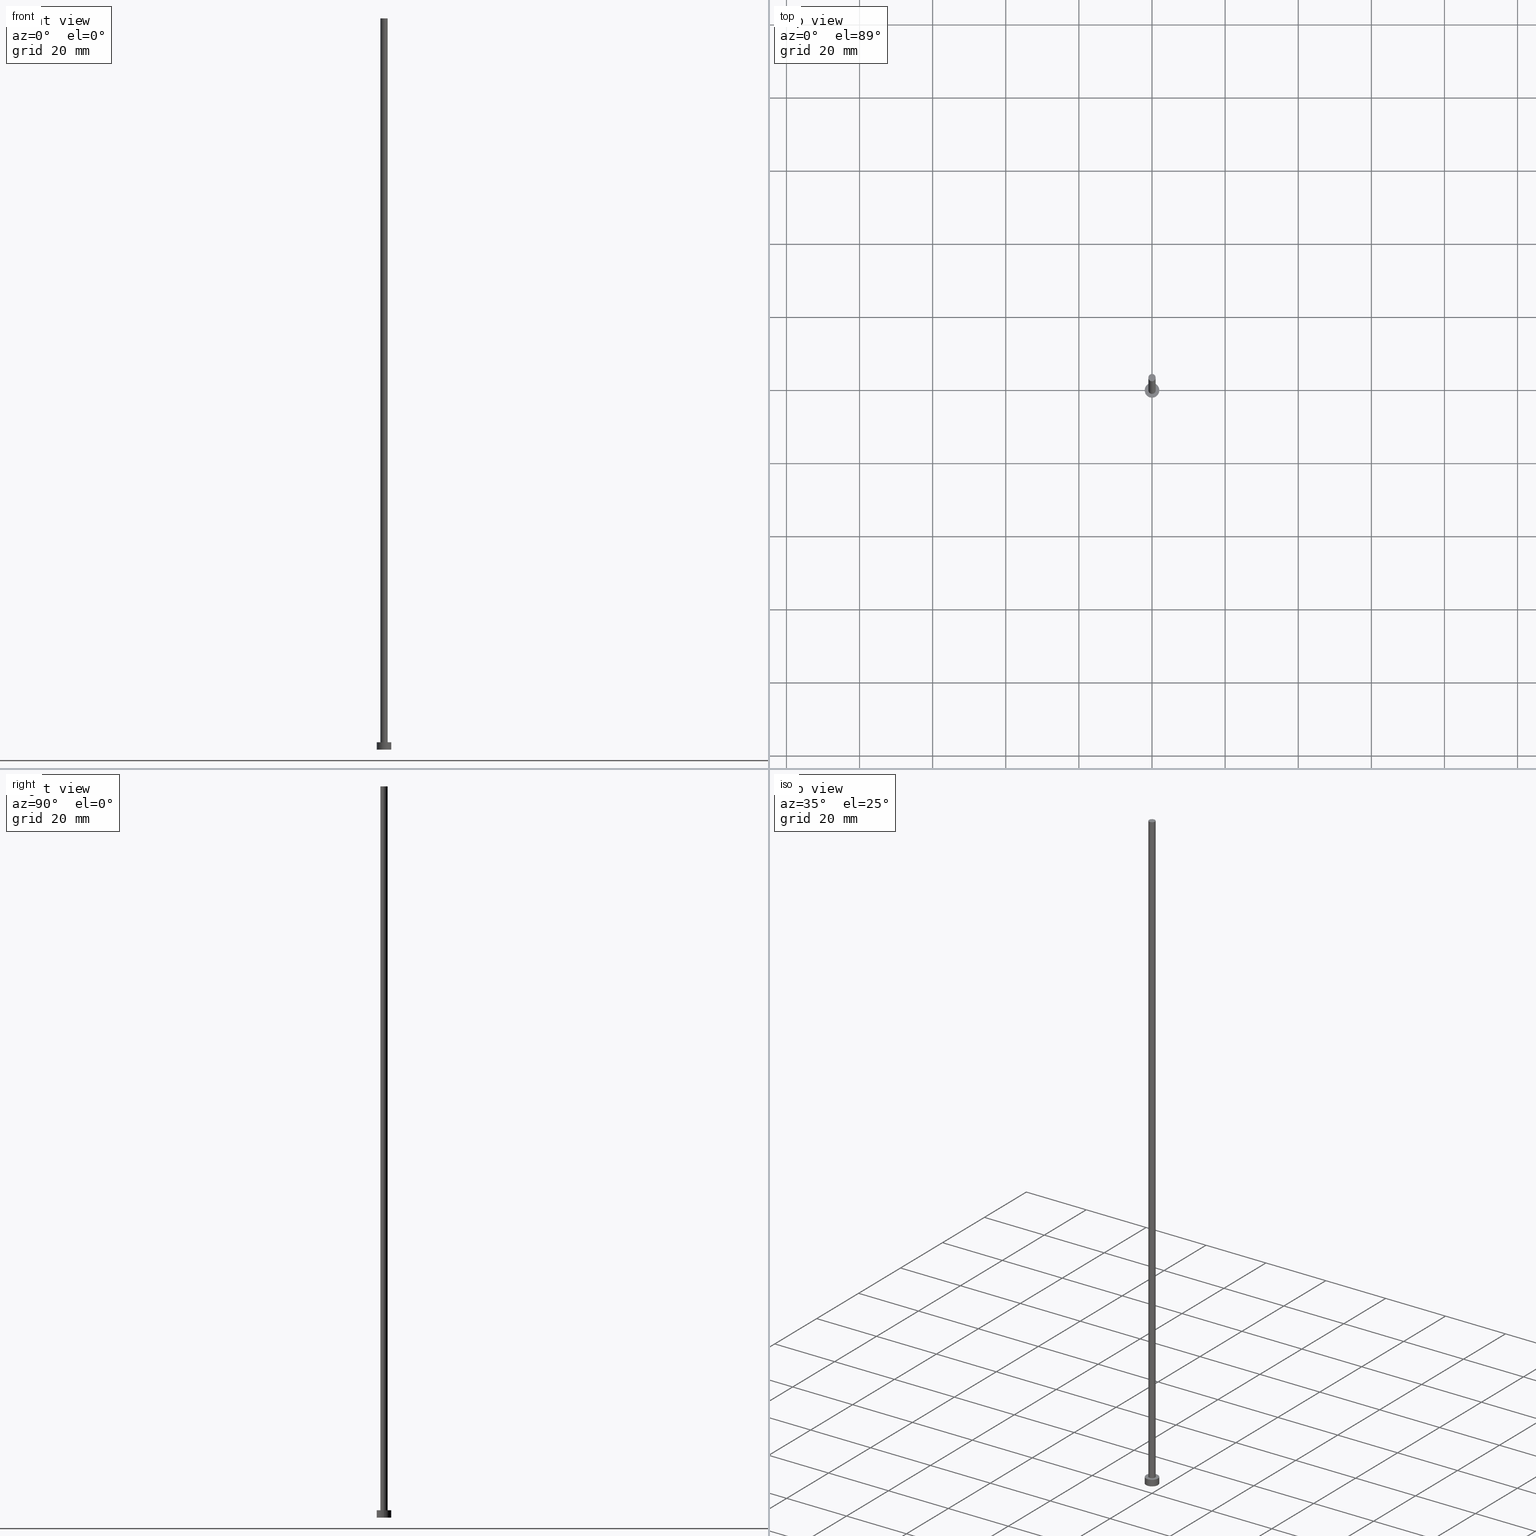
[diagram: canonical four-view strip — front | top / right | iso, engineering-drawing reading convention]
A machine part, canonical four-view strip (front | top / right | iso — engineering-drawing reading convention). The complete STEP part file that produces these views, byte-faithful:
ISO-10303-21;
HEADER;
FILE_DESCRIPTION (( 'STEP AP203' ),
    '1' );
FILE_NAME ('ee36.STEP',
    '2023-02-13T15:59:31',
    ( '' ),
    ( '' ),
    'SwSTEP 2.0',
    'SolidWorks 2019',
    '' );
FILE_SCHEMA (( 'CONFIG_CONTROL_DESIGN' ));
ENDSEC;

DATA;
#1 = PLANE ( 'NONE',  #49 ) ;
#2 = EDGE_CURVE ( 'NONE', #128, #109, #250, .T. ) ;
#3 = CARTESIAN_POINT ( 'NONE',  ( -2.000000000000000000, 0.000000000000000000, 2.000000000000000000 ) ) ;
#4 = PERSON_AND_ORGANIZATION ( #72, #22 ) ;
#5 = CYLINDRICAL_SURFACE ( 'NONE', #159, 2.000000000000000000 ) ;
#6 = AXIS2_PLACEMENT_3D ( 'NONE', #221, #63, #201 ) ;
#7 =( LENGTH_UNIT ( ) NAMED_UNIT ( * ) SI_UNIT ( .MILLI., .METRE. ) );
#8 = VERTEX_POINT ( 'NONE', #203 ) ;
#9 = DESIGN_CONTEXT ( 'detailed design', #87, 'design' ) ;
#10 = AXIS2_PLACEMENT_3D ( 'NONE', #192, #65, #149 ) ;
#11 = CC_DESIGN_DATE_AND_TIME_ASSIGNMENT ( #145, #101, ( #71 ) ) ;
#12 = ORIENTED_EDGE ( 'NONE', *, *, #245, .T. ) ;
#13 = APPROVAL ( #226, 'NEUR�EN�' ) ;
#14 = PERSON_AND_ORGANIZATION ( #72, #22 ) ;
#15 = EDGE_LOOP ( 'NONE', ( #214, #95, #198, #110 ) ) ;
#16 = ORIENTED_EDGE ( 'NONE', *, *, #229, .T. ) ;
#17 = VECTOR ( 'NONE', #243, 1000.000000000000000 ) ;
#18 = CARTESIAN_POINT ( 'NONE',  ( 1.000000000000000000, 1.224646799147353207E-16, 200.0000000000000000 ) ) ;
#19 = APPLICATION_PROTOCOL_DEFINITION ( 'international standard', 'config_control_design', 1994, #87 ) ;
#20 = DIRECTION ( 'NONE',  ( -0.000000000000000000, -0.000000000000000000, -1.000000000000000000 ) ) ;
#21 = LINE ( 'NONE', #119, #200 ) ;
#22 = ORGANIZATION ( 'NEUR�EN�', 'NEUR�EN�', '' ) ;
#23 = FACE_OUTER_BOUND ( 'NONE', #92, .T. ) ;
#24 = DIRECTION ( 'NONE',  ( 1.000000000000000000, 0.000000000000000000, 0.000000000000000000 ) ) ;
#25 = PERSON_AND_ORGANIZATION_ROLE ( 'classification_officer' ) ;
#26 = ADVANCED_FACE ( 'NONE', ( #186 ), #57, .T. ) ;
#27 = CC_DESIGN_APPROVAL ( #55, ( #59 ) ) ;
#28 = MANIFOLD_SOLID_BREP ( 'P�idat vysunut�m3', #48 ) ;
#29 = CIRCLE ( 'NONE', #6, 2.000000000000000000 ) ;
#30 = PRODUCT_DEFINITION_SHAPE ( 'NONE', 'NONE',  #59 ) ;
#31 = ORIENTED_EDGE ( 'NONE', *, *, #227, .T. ) ;
#32 = COORDINATED_UNIVERSAL_TIME_OFFSET ( 1, 0, .AHEAD. ) ;
#33 = ORIENTED_EDGE ( 'NONE', *, *, #2, .T. ) ;
#34 = PERSON_AND_ORGANIZATION ( #72, #22 ) ;
#35 = VECTOR ( 'NONE', #189, 1000.000000000000000 ) ;
#36 = ORIENTED_EDGE ( 'NONE', *, *, #66, .F. ) ;
#37 = ORIENTED_EDGE ( 'NONE', *, *, #165, .T. ) ;
#38 = CARTESIAN_POINT ( 'NONE',  ( 0.000000000000000000, 0.000000000000000000, 200.0000000000000000 ) ) ;
#39 = DIRECTION ( 'NONE',  ( 0.000000000000000000, 0.000000000000000000, 1.000000000000000000 ) ) ;
#40 = APPROVAL ( #154, 'NEUR�EN�' ) ;
#41 = DIRECTION ( 'NONE',  ( -1.000000000000000000, 0.000000000000000000, 0.000000000000000000 ) ) ;
#42 = SECURITY_CLASSIFICATION_LEVEL ( 'unclassified' ) ;
#43 = DIRECTION ( 'NONE',  ( 1.000000000000000000, 0.000000000000000000, 0.000000000000000000 ) ) ;
#44 = PERSON_AND_ORGANIZATION ( #72, #22 ) ;
#45 = PRODUCT_DEFINITION_FORMATION_WITH_SPECIFIED_SOURCE ( 'LIBOVOLN�', '', #77, .NOT_KNOWN. ) ;
#46 = LINE ( 'NONE', #83, #17 ) ;
#47 = COORDINATED_UNIVERSAL_TIME_OFFSET ( 1, 0, .AHEAD. ) ;
#48 = CLOSED_SHELL ( 'NONE', ( #26, #161, #141, #248, #218, #96, #202 ) ) ;
#49 = AXIS2_PLACEMENT_3D ( 'NONE', #222, #58, #137 ) ;
#50 = EDGE_CURVE ( 'NONE', #147, #56, #68, .T. ) ;
#51 = DIRECTION ( 'NONE',  ( 0.000000000000000000, 0.000000000000000000, 1.000000000000000000 ) ) ;
#52 = DIRECTION ( 'NONE',  ( 1.000000000000000000, 0.000000000000000000, 0.000000000000000000 ) ) ;
#53 = VERTEX_POINT ( 'NONE', #3 ) ;
#54 = DATE_AND_TIME ( #175, #230 ) ;
#55 = APPROVAL ( #93, 'NEUR�EN�' ) ;
#56 = VERTEX_POINT ( 'NONE', #224 ) ;
#57 = CYLINDRICAL_SURFACE ( 'NONE', #89, 1.000000000000000000 ) ;
#58 = DIRECTION ( 'NONE',  ( 0.000000000000000000, 0.000000000000000000, 1.000000000000000000 ) ) ;
#59 = PRODUCT_DEFINITION ( 'NEZN�M�', '', #45, #9 ) ;
#60 = CC_DESIGN_APPROVAL ( #13, ( #71 ) ) ;
#61 = DIRECTION ( 'NONE',  ( -0.000000000000000000, -0.000000000000000000, -1.000000000000000000 ) ) ;
#62 = CALENDAR_DATE ( 2023, 13, 2 ) ;
#63 = DIRECTION ( 'NONE',  ( 0.000000000000000000, 0.000000000000000000, 1.000000000000000000 ) ) ;
#64 = FACE_OUTER_BOUND ( 'NONE', #153, .T. ) ;
#65 = DIRECTION ( 'NONE',  ( 0.000000000000000000, 0.000000000000000000, 1.000000000000000000 ) ) ;
#66 = EDGE_CURVE ( 'NONE', #56, #147, #29, .T. ) ;
#67 = CARTESIAN_POINT ( 'NONE',  ( 0.000000000000000000, 0.000000000000000000, 2.000000000000000000 ) ) ;
#68 = CIRCLE ( 'NONE', #144, 2.000000000000000000 ) ;
#69 = DIRECTION ( 'NONE',  ( 0.000000000000000000, 0.000000000000000000, 1.000000000000000000 ) ) ;
#70 = EDGE_CURVE ( 'NONE', #98, #56, #21, .T. ) ;
#71 = SECURITY_CLASSIFICATION ( '', '', #42 ) ;
#72 = PERSON ( 'NEUR�EN�', 'NEUR�EN�', 'NEUR�EN�', ('NEUR�EN�'), ('NEUR�EN�'), ('NEUR�EN�') ) ;
#73 = PERSON_AND_ORGANIZATION_ROLE ( 'design_owner' ) ;
#74 = CC_DESIGN_DATE_AND_TIME_ASSIGNMENT ( #135, #249, ( #59 ) ) ;
#75 = CC_DESIGN_APPROVAL ( #40, ( #45 ) ) ;
#76 = ORIENTED_EDGE ( 'NONE', *, *, #165, .F. ) ;
#77 = PRODUCT ( 'ee36', 'ee36', '', ( #215 ) ) ;
#78 = EDGE_CURVE ( 'NONE', #109, #8, #188, .T. ) ;
#79 = DIRECTION ( 'NONE',  ( -0.000000000000000000, -0.000000000000000000, -1.000000000000000000 ) ) ;
#80 = AXIS2_PLACEMENT_3D ( 'NONE', #171, #143, #160 ) ;
#81 = APPROVAL_PERSON_ORGANIZATION ( #34, #40, #234 ) ;
#82 = PERSON_AND_ORGANIZATION ( #72, #22 ) ;
#83 = CARTESIAN_POINT ( 'NONE',  ( 1.000000000000000000, 1.224646799147353207E-16, 200.0000000000000000 ) ) ;
#84 = DIRECTION ( 'NONE',  ( -1.000000000000000000, 0.000000000000000000, 0.000000000000000000 ) ) ;
#85 = PERSON_AND_ORGANIZATION_ROLE ( 'design_supplier' ) ;
#86 = APPROVAL_DATE_TIME ( #138, #40 ) ;
#87 = APPLICATION_CONTEXT ( 'configuration controlled 3d designs of mechanical parts and assemblies' ) ;
#88 = CARTESIAN_POINT ( 'NONE',  ( 0.000000000000000000, 0.000000000000000000, 0.000000000000000000 ) ) ;
#89 = AXIS2_PLACEMENT_3D ( 'NONE', #102, #79, #84 ) ;
#90 = LINE ( 'NONE', #225, #35 ) ;
#91 = PERSON_AND_ORGANIZATION ( #72, #22 ) ;
#92 = EDGE_LOOP ( 'NONE', ( #136, #36 ) ) ;
#93 = APPROVAL_STATUS ( 'not_yet_approved' ) ;
#94 = APPROVAL_PERSON_ORGANIZATION ( #82, #13, #124 ) ;
#95 = ORIENTED_EDGE ( 'NONE', *, *, #70, .T. ) ;
#96 = ADVANCED_FACE ( 'NONE', ( #163 ), #181, .T. ) ;
#97 = ORIENTED_EDGE ( 'NONE', *, *, #213, .T. ) ;
#98 = VERTEX_POINT ( 'NONE', #139 ) ;
#99 = CALENDAR_DATE ( 2023, 13, 2 ) ;
#100 = DIRECTION ( 'NONE',  ( -0.000000000000000000, -0.000000000000000000, -1.000000000000000000 ) ) ;
#101 = DATE_TIME_ROLE ( 'classification_date' ) ;
#102 = CARTESIAN_POINT ( 'NONE',  ( 0.000000000000000000, 0.000000000000000000, 200.0000000000000000 ) ) ;
#103 = CIRCLE ( 'NONE', #127, 1.000000000000000000 ) ;
#104 = FACE_OUTER_BOUND ( 'NONE', #15, .T. ) ;
#105 = EDGE_CURVE ( 'NONE', #109, #128, #103, .T. ) ;
#106 = SHAPE_DEFINITION_REPRESENTATION ( #30, #182 ) ;
#107 = DIRECTION ( 'NONE',  ( 0.000000000000000000, 0.000000000000000000, 1.000000000000000000 ) ) ;
#108 = CALENDAR_DATE ( 2023, 13, 2 ) ;
#109 = VERTEX_POINT ( 'NONE', #142 ) ;
#110 = ORIENTED_EDGE ( 'NONE', *, *, #245, .F. ) ;
#111 =( NAMED_UNIT ( * ) PLANE_ANGLE_UNIT ( ) SI_UNIT ( $, .RADIAN. ) );
#112 = DIRECTION ( 'NONE',  ( 0.000000000000000000, 0.000000000000000000, 1.000000000000000000 ) ) ;
#113 = ORIENTED_EDGE ( 'NONE', *, *, #227, .F. ) ;
#114 = PRODUCT_RELATED_PRODUCT_CATEGORY ( 'detail', '', ( #77 ) ) ;
#115 = AXIS2_PLACEMENT_3D ( 'NONE', #38, #244, #41 ) ;
#116 = ORIENTED_EDGE ( 'NONE', *, *, #50, .T. ) ;
#117 = ORIENTED_EDGE ( 'NONE', *, *, #213, .F. ) ;
#118 = CARTESIAN_POINT ( 'NONE',  ( 0.000000000000000000, 0.000000000000000000, 0.000000000000000000 ) ) ;
#119 = CARTESIAN_POINT ( 'NONE',  ( 2.000000000000000000, 2.449293598294706414E-16, 2.000000000000000000 ) ) ;
#120 = CARTESIAN_POINT ( 'NONE',  ( 0.000000000000000000, 0.000000000000000000, 2.000000000000000000 ) ) ;
#121 = CC_DESIGN_PERSON_AND_ORGANIZATION_ASSIGNMENT ( #14, #73, ( #77 ) ) ;
#122 = DIRECTION ( 'NONE',  ( -1.000000000000000000, 0.000000000000000000, 0.000000000000000000 ) ) ;
#123 =( GEOMETRIC_REPRESENTATION_CONTEXT ( 3 ) GLOBAL_UNCERTAINTY_ASSIGNED_CONTEXT ( ( #164 ) ) GLOBAL_UNIT_ASSIGNED_CONTEXT ( ( #7, #111, #146 ) ) REPRESENTATION_CONTEXT ( 'NONE', 'WORKASPACE' ) );
#124 = APPROVAL_ROLE ( '' ) ;
#125 = PLANE ( 'NONE',  #255 ) ;
#126 = COORDINATED_UNIVERSAL_TIME_OFFSET ( 1, 0, .AHEAD. ) ;
#127 = AXIS2_PLACEMENT_3D ( 'NONE', #206, #39, #253 ) ;
#128 = VERTEX_POINT ( 'NONE', #18 ) ;
#129 = DIRECTION ( 'NONE',  ( 1.000000000000000000, 0.000000000000000000, -0.000000000000000000 ) ) ;
#130 = APPROVAL_DATE_TIME ( #54, #55 ) ;
#131 = CC_DESIGN_PERSON_AND_ORGANIZATION_ASSIGNMENT ( #44, #25, ( #71 ) ) ;
#132 = DIRECTION ( 'NONE',  ( 0.000000000000000000, 0.000000000000000000, 1.000000000000000000 ) ) ;
#133 = ORIENTED_EDGE ( 'NONE', *, *, #78, .T. ) ;
#134 = COORDINATED_UNIVERSAL_TIME_OFFSET ( 1, 0, .AHEAD. ) ;
#135 = DATE_AND_TIME ( #99, #155 ) ;
#136 = ORIENTED_EDGE ( 'NONE', *, *, #50, .F. ) ;
#137 = DIRECTION ( 'NONE',  ( 1.000000000000000000, 0.000000000000000000, -0.000000000000000000 ) ) ;
#138 = DATE_AND_TIME ( #239, #217 ) ;
#139 = CARTESIAN_POINT ( 'NONE',  ( 2.000000000000000000, 2.449293598294706414E-16, 2.000000000000000000 ) ) ;
#140 = APPROVAL_DATE_TIME ( #187, #13 ) ;
#141 = ADVANCED_FACE ( 'NONE', ( #64 ), #220, .T. ) ;
#142 = CARTESIAN_POINT ( 'NONE',  ( -1.000000000000000000, 0.000000000000000000, 200.0000000000000000 ) ) ;
#143 = DIRECTION ( 'NONE',  ( 0.000000000000000000, 0.000000000000000000, 1.000000000000000000 ) ) ;
#144 = AXIS2_PLACEMENT_3D ( 'NONE', #118, #107, #24 ) ;
#145 = DATE_AND_TIME ( #108, #172 ) ;
#146 =( NAMED_UNIT ( * ) SI_UNIT ( $, .STERADIAN. ) SOLID_ANGLE_UNIT ( ) );
#147 = VERTEX_POINT ( 'NONE', #158 ) ;
#148 = CIRCLE ( 'NONE', #10, 2.000000000000000000 ) ;
#149 = DIRECTION ( 'NONE',  ( 1.000000000000000000, 0.000000000000000000, 0.000000000000000000 ) ) ;
#150 = CC_DESIGN_PERSON_AND_ORGANIZATION_ASSIGNMENT ( #184, #242, ( #45 ) ) ;
#151 = CIRCLE ( 'NONE', #219, 1.000000000000000000 ) ;
#152 = APPROVAL_ROLE ( '' ) ;
#153 = EDGE_LOOP ( 'NONE', ( #174, #167, #12, #116 ) ) ;
#154 = APPROVAL_STATUS ( 'not_yet_approved' ) ;
#155 = LOCAL_TIME ( 16, 59, 31.00000000000000000, #32 ) ;
#156 = EDGE_LOOP ( 'NONE', ( #76, #113 ) ) ;
#157 = CARTESIAN_POINT ( 'NONE',  ( 0.000000000000000000, 0.000000000000000000, 2.000000000000000000 ) ) ;
#158 = CARTESIAN_POINT ( 'NONE',  ( -2.000000000000000000, 0.000000000000000000, 0.000000000000000000 ) ) ;
#159 = AXIS2_PLACEMENT_3D ( 'NONE', #157, #20, #238 ) ;
#160 = DIRECTION ( 'NONE',  ( 1.000000000000000000, 0.000000000000000000, 0.000000000000000000 ) ) ;
#161 = ADVANCED_FACE ( 'NONE', ( #104 ), #5, .T. ) ;
#162 = CARTESIAN_POINT ( 'NONE',  ( 0.000000000000000000, 0.000000000000000000, 2.000000000000000000 ) ) ;
#163 = FACE_OUTER_BOUND ( 'NONE', #208, .T. ) ;
#164 = UNCERTAINTY_MEASURE_WITH_UNIT (LENGTH_MEASURE( 1.000000000000000082E-05 ), #7, 'distance_accuracy_value', 'NONE');
#165 = EDGE_CURVE ( 'NONE', #8, #236, #151, .T. ) ;
#166 = CIRCLE ( 'NONE', #240, 2.000000000000000000 ) ;
#167 = ORIENTED_EDGE ( 'NONE', *, *, #209, .F. ) ;
#168 = DIRECTION ( 'NONE',  ( 1.000000000000000000, 0.000000000000000000, 0.000000000000000000 ) ) ;
#169 = CC_DESIGN_PERSON_AND_ORGANIZATION_ASSIGNMENT ( #4, #85, ( #45 ) ) ;
#170 = APPLICATION_CONTEXT ( 'configuration controlled 3d designs of mechanical parts and assemblies' ) ;
#171 = CARTESIAN_POINT ( 'NONE',  ( 0.000000000000000000, 0.000000000000000000, 200.0000000000000000 ) ) ;
#172 = LOCAL_TIME ( 16, 59, 31.00000000000000000, #191 ) ;
#173 = CARTESIAN_POINT ( 'NONE',  ( 0.000000000000000000, 0.000000000000000000, 0.000000000000000000 ) ) ;
#174 = ORIENTED_EDGE ( 'NONE', *, *, #70, .F. ) ;
#175 = CALENDAR_DATE ( 2023, 13, 2 ) ;
#176 = ORIENTED_EDGE ( 'NONE', *, *, #2, .F. ) ;
#177 = EDGE_LOOP ( 'NONE', ( #176, #97, #31, #196 ) ) ;
#178 = CC_DESIGN_PERSON_AND_ORGANIZATION_ASSIGNMENT ( #91, #233, ( #59 ) ) ;
#179 = AXIS2_PLACEMENT_3D ( 'NONE', #120, #100, #122 ) ;
#180 = EDGE_LOOP ( 'NONE', ( #251, #16 ) ) ;
#181 = CYLINDRICAL_SURFACE ( 'NONE', #115, 1.000000000000000000 ) ;
#182 = ADVANCED_BREP_SHAPE_REPRESENTATION ( 'ee36', ( #28, #190 ), #123 ) ;
#183 = CARTESIAN_POINT ( 'NONE',  ( -1.000000000000000000, 0.000000000000000000, 200.0000000000000000 ) ) ;
#184 = PERSON_AND_ORGANIZATION ( #72, #22 ) ;
#185 = CARTESIAN_POINT ( 'NONE',  ( 0.000000000000000000, 0.000000000000000000, 2.000000000000000000 ) ) ;
#186 = FACE_OUTER_BOUND ( 'NONE', #177, .T. ) ;
#187 = DATE_AND_TIME ( #62, #223 ) ;
#188 = LINE ( 'NONE', #183, #235 ) ;
#189 = DIRECTION ( 'NONE',  ( -0.000000000000000000, -0.000000000000000000, -1.000000000000000000 ) ) ;
#190 = AXIS2_PLACEMENT_3D ( 'NONE', #173, #69, #52 ) ;
#191 = COORDINATED_UNIVERSAL_TIME_OFFSET ( 1, 0, .AHEAD. ) ;
#192 = CARTESIAN_POINT ( 'NONE',  ( 0.000000000000000000, 0.000000000000000000, 2.000000000000000000 ) ) ;
#193 = FACE_OUTER_BOUND ( 'NONE', #180, .T. ) ;
#194 = AXIS2_PLACEMENT_3D ( 'NONE', #67, #51, #195 ) ;
#195 = DIRECTION ( 'NONE',  ( 1.000000000000000000, 0.000000000000000000, -0.000000000000000000 ) ) ;
#196 = ORIENTED_EDGE ( 'NONE', *, *, #78, .F. ) ;
#197 = AXIS2_PLACEMENT_3D ( 'NONE', #210, #112, #168 ) ;
#198 = ORIENTED_EDGE ( 'NONE', *, *, #66, .T. ) ;
#199 = ORIENTED_EDGE ( 'NONE', *, *, #105, .F. ) ;
#200 = VECTOR ( 'NONE', #241, 1000.000000000000000 ) ;
#201 = DIRECTION ( 'NONE',  ( 1.000000000000000000, 0.000000000000000000, 0.000000000000000000 ) ) ;
#202 = ADVANCED_FACE ( 'NONE', ( #237 ), #1, .T. ) ;
#203 = CARTESIAN_POINT ( 'NONE',  ( -1.000000000000000000, 0.000000000000000000, 2.000000000000000000 ) ) ;
#204 = DIRECTION ( 'NONE',  ( 0.000000000000000000, 0.000000000000000000, 1.000000000000000000 ) ) ;
#205 = DIRECTION ( 'NONE',  ( 1.000000000000000000, 0.000000000000000000, 0.000000000000000000 ) ) ;
#206 = CARTESIAN_POINT ( 'NONE',  ( 0.000000000000000000, 0.000000000000000000, 200.0000000000000000 ) ) ;
#207 = APPROVAL_PERSON_ORGANIZATION ( #216, #55, #152 ) ;
#208 = EDGE_LOOP ( 'NONE', ( #117, #199, #133, #37 ) ) ;
#209 = EDGE_CURVE ( 'NONE', #53, #98, #166, .T. ) ;
#210 = CARTESIAN_POINT ( 'NONE',  ( 0.000000000000000000, 0.000000000000000000, 2.000000000000000000 ) ) ;
#211 = FACE_BOUND ( 'NONE', #156, .T. ) ;
#212 = CC_DESIGN_SECURITY_CLASSIFICATION ( #71, ( #45 ) ) ;
#213 = EDGE_CURVE ( 'NONE', #128, #236, #46, .T. ) ;
#214 = ORIENTED_EDGE ( 'NONE', *, *, #229, .F. ) ;
#215 = MECHANICAL_CONTEXT ( 'NONE', #170, 'mechanical' ) ;
#216 = PERSON_AND_ORGANIZATION ( #72, #22 ) ;
#217 = LOCAL_TIME ( 16, 59, 31.00000000000000000, #47 ) ;
#218 = ADVANCED_FACE ( 'NONE', ( #23 ), #125, .F. ) ;
#219 = AXIS2_PLACEMENT_3D ( 'NONE', #185, #204, #205 ) ;
#220 = CYLINDRICAL_SURFACE ( 'NONE', #179, 2.000000000000000000 ) ;
#221 = CARTESIAN_POINT ( 'NONE',  ( 0.000000000000000000, 0.000000000000000000, 0.000000000000000000 ) ) ;
#222 = CARTESIAN_POINT ( 'NONE',  ( 0.000000000000000000, 0.000000000000000000, 200.0000000000000000 ) ) ;
#223 = LOCAL_TIME ( 16, 59, 31.00000000000000000, #126 ) ;
#224 = CARTESIAN_POINT ( 'NONE',  ( 2.000000000000000000, 2.449293598294706414E-16, 0.000000000000000000 ) ) ;
#225 = CARTESIAN_POINT ( 'NONE',  ( -2.000000000000000000, 0.000000000000000000, 2.000000000000000000 ) ) ;
#226 = APPROVAL_STATUS ( 'not_yet_approved' ) ;
#227 = EDGE_CURVE ( 'NONE', #236, #8, #247, .T. ) ;
#228 = CARTESIAN_POINT ( 'NONE',  ( 1.000000000000000000, 1.224646799147353207E-16, 2.000000000000000000 ) ) ;
#229 = EDGE_CURVE ( 'NONE', #98, #53, #148, .T. ) ;
#230 = LOCAL_TIME ( 16, 59, 31.00000000000000000, #134 ) ;
#231 = EDGE_LOOP ( 'NONE', ( #252, #33 ) ) ;
#232 = APPLICATION_PROTOCOL_DEFINITION ( 'international standard', 'config_control_design', 1994, #170 ) ;
#233 = PERSON_AND_ORGANIZATION_ROLE ( 'creator' ) ;
#234 = APPROVAL_ROLE ( '' ) ;
#235 = VECTOR ( 'NONE', #61, 1000.000000000000000 ) ;
#236 = VERTEX_POINT ( 'NONE', #228 ) ;
#237 = FACE_OUTER_BOUND ( 'NONE', #231, .T. ) ;
#238 = DIRECTION ( 'NONE',  ( -1.000000000000000000, 0.000000000000000000, 0.000000000000000000 ) ) ;
#239 = CALENDAR_DATE ( 2023, 13, 2 ) ;
#240 = AXIS2_PLACEMENT_3D ( 'NONE', #162, #254, #43 ) ;
#241 = DIRECTION ( 'NONE',  ( -0.000000000000000000, -0.000000000000000000, -1.000000000000000000 ) ) ;
#242 = PERSON_AND_ORGANIZATION_ROLE ( 'creator' ) ;
#243 = DIRECTION ( 'NONE',  ( -0.000000000000000000, -0.000000000000000000, -1.000000000000000000 ) ) ;
#244 = DIRECTION ( 'NONE',  ( -0.000000000000000000, -0.000000000000000000, -1.000000000000000000 ) ) ;
#245 = EDGE_CURVE ( 'NONE', #53, #147, #90, .T. ) ;
#246 = PLANE ( 'NONE',  #194 ) ;
#247 = CIRCLE ( 'NONE', #197, 1.000000000000000000 ) ;
#248 = ADVANCED_FACE ( 'NONE', ( #211, #193 ), #246, .T. ) ;
#249 = DATE_TIME_ROLE ( 'creation_date' ) ;
#250 = CIRCLE ( 'NONE', #80, 1.000000000000000000 ) ;
#251 = ORIENTED_EDGE ( 'NONE', *, *, #209, .T. ) ;
#252 = ORIENTED_EDGE ( 'NONE', *, *, #105, .T. ) ;
#253 = DIRECTION ( 'NONE',  ( 1.000000000000000000, 0.000000000000000000, 0.000000000000000000 ) ) ;
#254 = DIRECTION ( 'NONE',  ( 0.000000000000000000, 0.000000000000000000, 1.000000000000000000 ) ) ;
#255 = AXIS2_PLACEMENT_3D ( 'NONE', #88, #132, #129 ) ;
ENDSEC;
END-ISO-10303-21;
